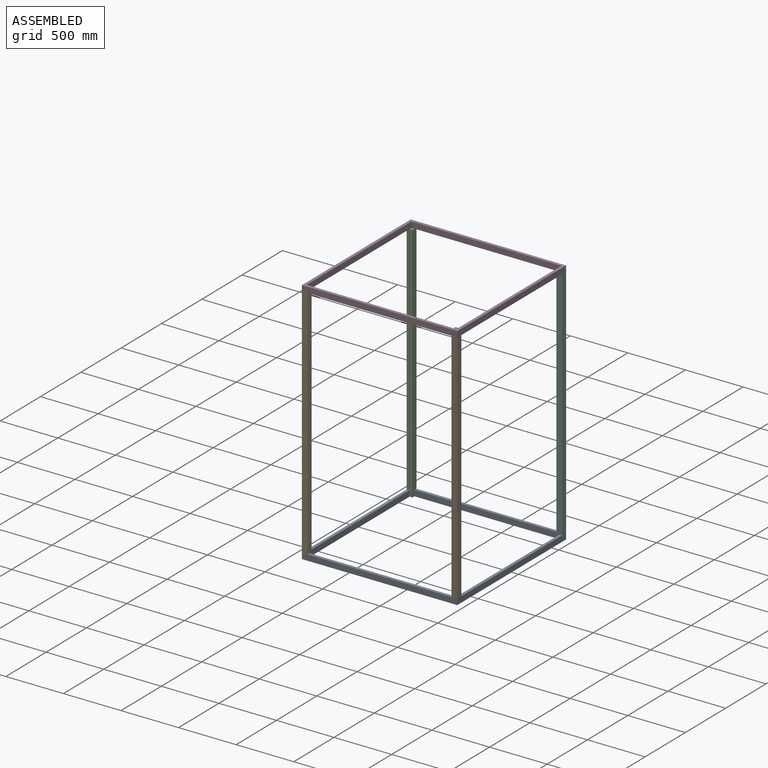
[diagram: assembled view]
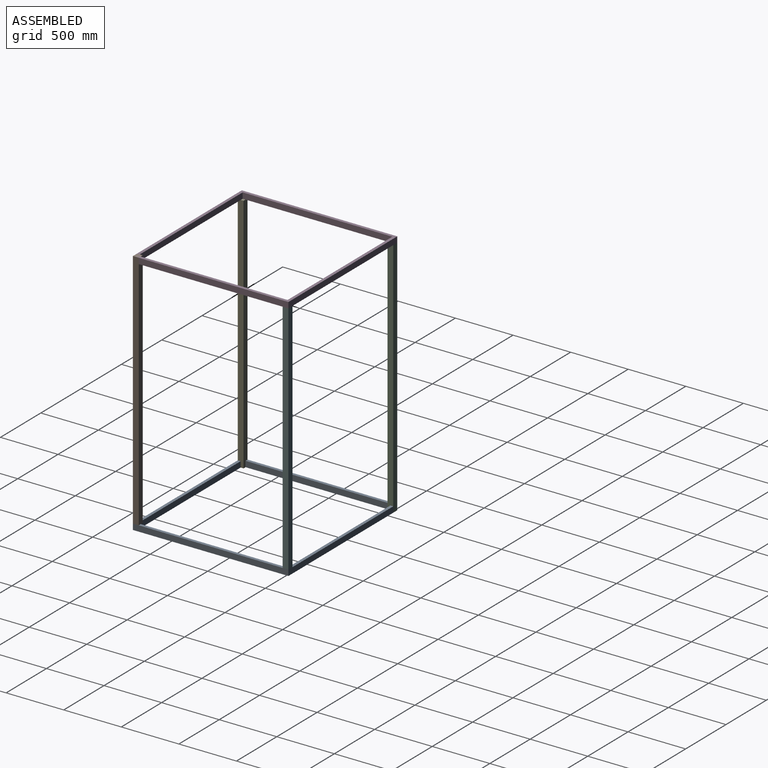
[diagram: assembled view, second angle]
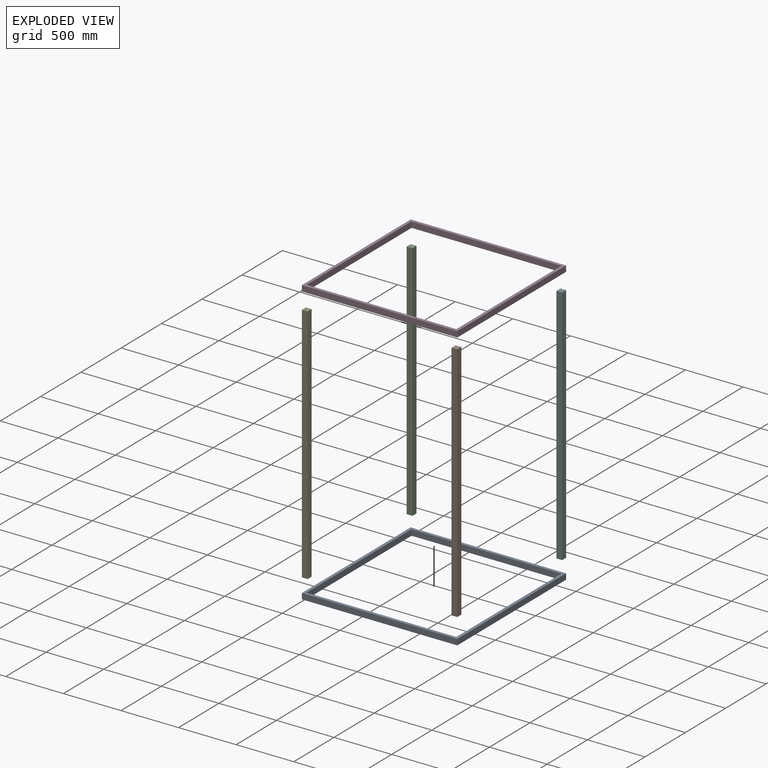
[diagram: exploded view]
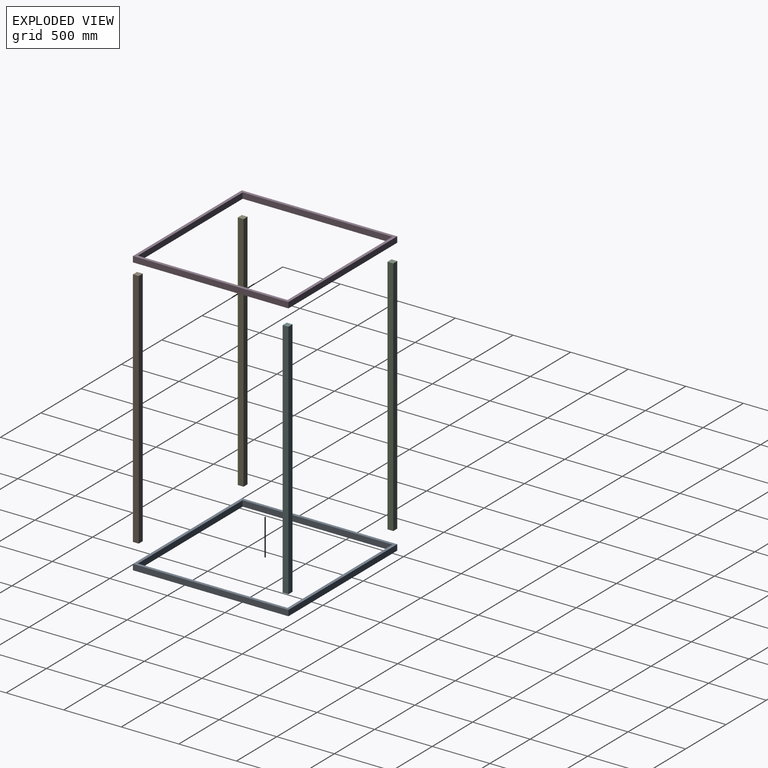
[diagram: exploded view, second angle]
ASSEMBLY  parts=6 mates=5
PART A: 10 faces, bbox 1350x1350x50 mm
  f0: plane 1350x50mm, normal (0,1,0), area 67500mm2, adj f1,f7,f8,f9
  f1: plane 1350x50mm, normal (-1,0,0), area 67500mm2, adj f0,f2,f8,f9
  f2: plane 1350x50mm, normal (0,-1,0), area 67500mm2, adj f1,f7,f8,f9
  f3: plane 1300x50mm, normal (1,0,0), area 65000mm2, adj f4,f6,f8,f9
  f4: plane 1300x50mm, normal (0,-1,0), area 65000mm2, adj f3,f5,f8,f9
  f5: plane 1300x50mm, normal (-1,0,0), area 65000mm2, adj f4,f6,f8,f9
  f6: plane 1300x50mm, normal (0,1,0), area 65000mm2, adj f3,f5,f8,f9
  f7: plane 1350x50mm, normal (1,0,0), area 67500mm2, adj f0,f2,f8,f9
  f8: plane 1350x1350mm, normal (0,0,1), area 132500mm2, adj f0,f1,f2,f3,f4,f5,f6,f7
  f9: plane 1350x1350mm, normal (0,0,-1), area 132500mm2, adj f0,f1,f2,f3,f4,f5,f6,f7
PART B: 6 faces, bbox 2100x50x50 mm
  f0: plane 50x50mm, normal (1,0,0), area 2500mm2, adj f1,f3,f4,f5
  f1: plane 2100x50mm, normal (0,0,1), area 105000mm2, adj f0,f2,f4,f5
  f2: plane 50x50mm, normal (-1,0,0), area 2500mm2, adj f1,f3,f4,f5
  f3: plane 2100x50mm, normal (0,0,-1), area 105000mm2, adj f0,f2,f4,f5
  f4: plane 2100x50mm, normal (0,-1,0), area 105000mm2, adj f0,f1,f2,f3
  f5: plane 2100x50mm, normal (0,1,0), area 105000mm2, adj f0,f1,f2,f3
PART C: same geometry as B
PART D: same geometry as A
PART E: same geometry as B
PART F: same geometry as B
PLACE A t=(1743.95,319.25,-3156.42)mm
PLACE B rot(axis=(0.71,0,0.71),180deg) t=(2393.95,-355.75,-2056.42)mm
PLACE C rot(axis=(0.71,0,-0.71),180deg) t=(1093.95,944.25,-2106.42)mm
PLACE D t=(1743.95,319.25,-1056.42)mm
PLACE E rot(axis=(0.71,0,0.71),180deg) t=(1093.95,-355.75,-2106.42)mm
PLACE F rot(axis=(0.71,0,-0.71),180deg) t=(2393.95,944.25,-2106.42)mm
MATE fastened F.f2 <-> D.f9  axis (0,0,1) through (2393.95,969.25,-1056.42)mm
MATE fastened A.f9 <-> C.f0  axis (0,0,1) through (1093.95,969.25,-3156.42)mm
MATE fastened E.f0 <-> D.f9  axis (0,0,1) through (1093.95,-330.75,-1056.42)mm
MATE fastened B.f0 <-> D.f8  axis (0,0,1) through (2393.95,-330.75,-1006.42)mm
MATE fastened C.f2 <-> D.f9  axis (0,0,1) through (1093.95,969.25,-1056.42)mm
